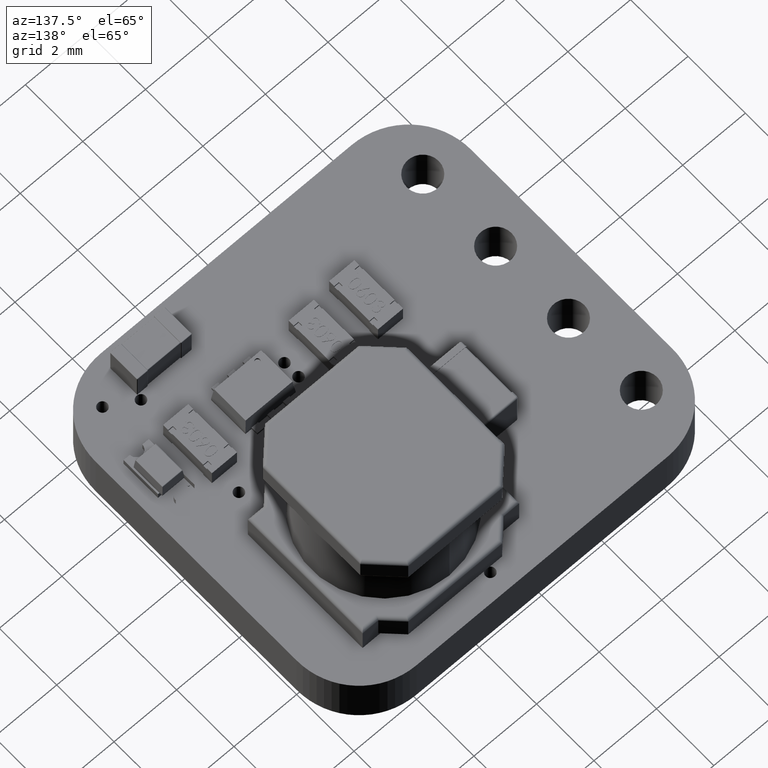
[diagram: clean part render]
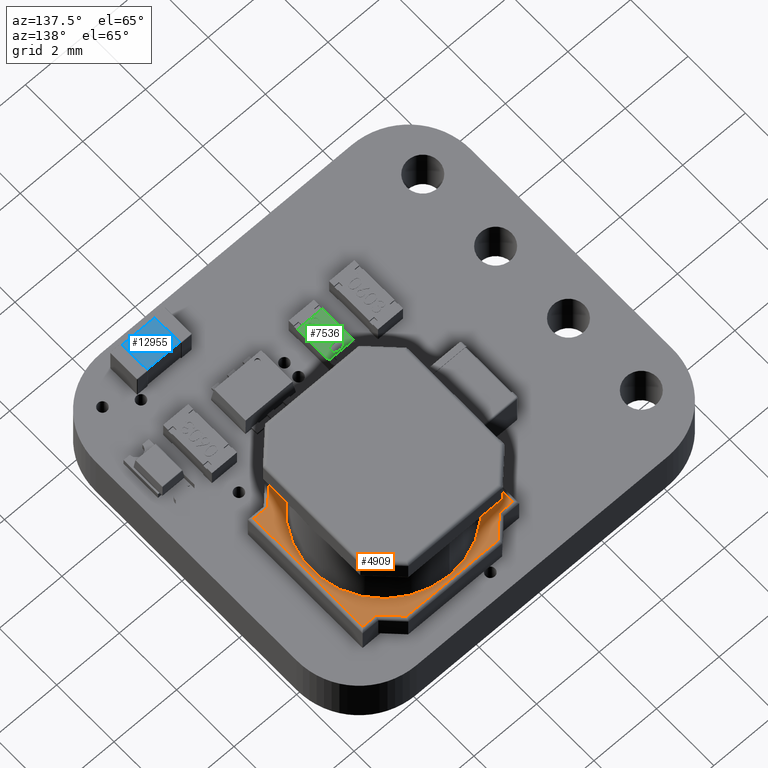
[diagram: same view with three faces highlighted in distinct colors, each labeled with its STEP entity id]
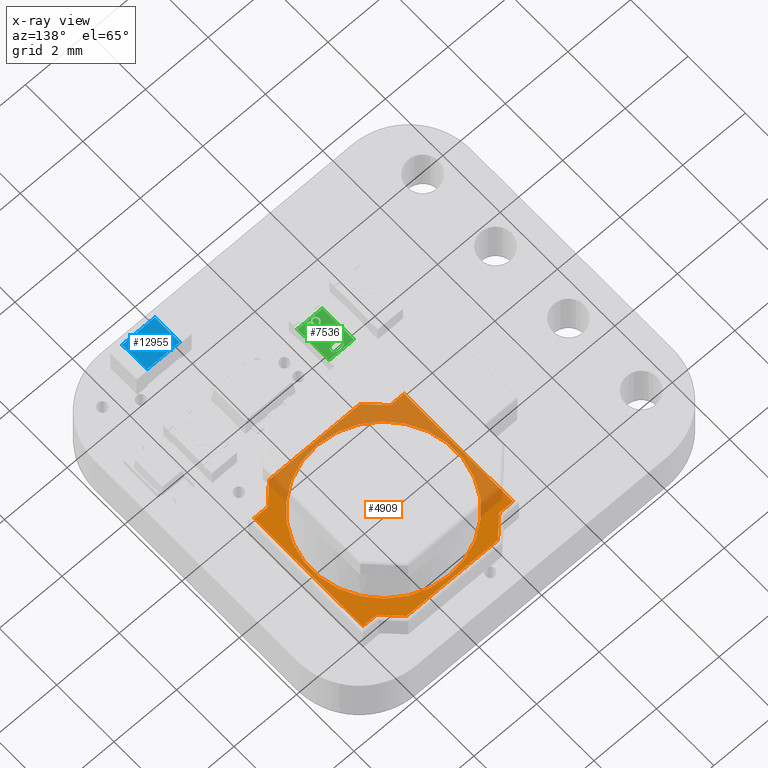
[diagram: x-ray of the same camera — body ghosted, the three highlighted faces saturated]
A machine part, auxiliary view with three faces highlighted in distinct colors.
The next image is the same camera in x-ray (body ghosted, the three faces saturated) — at least one of them is partly hidden behind the body in this view.
Their STEP definitions:

[orange] entity #4909 — the highlighted planar face has unit normal (-0, 0, 1).
#4333 = VERTEX_POINT('',#4334);
#4334 = CARTESIAN_POINT('',(2.816687638039E-16,0.900000000001,2.3));
#4340 = EDGE_CURVE('',#4333,#4341,#4343,.T.);
#4341 = VERTEX_POINT('',#4342);
#4342 = CARTESIAN_POINT('',(0.,0.900000000001,-2.3));
#4343 = CIRCLE('',#4344,2.3);
#4344 = AXIS2_PLACEMENT_3D('',#4345,#4346,#4347);
#4345 = CARTESIAN_POINT('',(0.,0.900000000001,0.));
#4346 = DIRECTION('',(0.,1.,-0.));
#4347 = DIRECTION('',(0.,0.,1.));
#4898 = EDGE_CURVE('',#4341,#4333,#4899,.T.);
#4899 = CIRCLE('',#4900,2.3);
#4900 = AXIS2_PLACEMENT_3D('',#4901,#4902,#4903);
#4901 = CARTESIAN_POINT('',(0.,0.900000000001,0.));
#4902 = DIRECTION('',(0.,1.,-0.));
#4903 = DIRECTION('',(0.,0.,1.));
#4909 = ADVANCED_FACE('',(#4910,#5008),#5012,.T.);
#4910 = FACE_BOUND('',#4911,.T.);
#4911 = EDGE_LOOP('',(#4912,#4922,#4930,#4938,#4946,#4954,#4962,#4970,
    #4978,#4986,#4994,#5002));
#4912 = ORIENTED_EDGE('',*,*,#4913,.T.);
#4913 = EDGE_CURVE('',#4914,#4916,#4918,.T.);
#4914 = VERTEX_POINT('',#4915);
#4915 = CARTESIAN_POINT('',(2.4,0.9,1.9));
#4916 = VERTEX_POINT('',#4917);
#4917 = CARTESIAN_POINT('',(2.4,0.9,-1.9));
#4918 = LINE('',#4919,#4920);
#4919 = CARTESIAN_POINT('',(2.4,0.9,-2.));
#4920 = VECTOR('',#4921,1.);
#4921 = DIRECTION('',(0.,0.,-1.));
#4922 = ORIENTED_EDGE('',*,*,#4923,.T.);
#4923 = EDGE_CURVE('',#4916,#4924,#4926,.T.);
#4924 = VERTEX_POINT('',#4925);
#4925 = CARTESIAN_POINT('',(1.958578643763,0.9,-1.9));
#4926 = LINE('',#4927,#4928);
#4927 = CARTESIAN_POINT('',(2.,0.9,-1.9));
#4928 = VECTOR('',#4929,1.);
#4929 = DIRECTION('',(-1.,0.,0.));
#4930 = ORIENTED_EDGE('',*,*,#4931,.T.);
#4931 = EDGE_CURVE('',#4924,#4932,#4934,.T.);
#4932 = VERTEX_POINT('',#4933);
#4933 = CARTESIAN_POINT('',(1.458578643763,0.9,-2.4));
#4934 = LINE('',#4935,#4936);
#4935 = CARTESIAN_POINT('',(1.429289321881,0.9,-2.429289321881));
#4936 = VECTOR('',#4937,1.);
#4937 = DIRECTION('',(-0.707106781187,0.,-0.707106781187));
#4938 = ORIENTED_EDGE('',*,*,#4939,.T.);
#4939 = EDGE_CURVE('',#4932,#4940,#4942,.T.);
#4940 = VERTEX_POINT('',#4941);
#4941 = CARTESIAN_POINT('',(-1.458578643763,0.9,-2.4));
#4942 = LINE('',#4943,#4944);
#4943 = CARTESIAN_POINT('',(-1.5,0.9,-2.4));
#4944 = VECTOR('',#4945,1.);
#4945 = DIRECTION('',(-1.,0.,0.));
#4946 = ORIENTED_EDGE('',*,*,#4947,.T.);
#4947 = EDGE_CURVE('',#4940,#4948,#4950,.T.);
#4948 = VERTEX_POINT('',#4949);
#4949 = CARTESIAN_POINT('',(-1.958578643763,0.9,-1.9));
#4950 = LINE('',#4951,#4952);
#4951 = CARTESIAN_POINT('',(-1.929289321881,0.9,-1.929289321881));
#4952 = VECTOR('',#4953,1.);
#4953 = DIRECTION('',(-0.707106781187,0.,0.707106781187));
#4954 = ORIENTED_EDGE('',*,*,#4955,.T.);
#4955 = EDGE_CURVE('',#4948,#4956,#4958,.T.);
#4956 = VERTEX_POINT('',#4957);
#4957 = CARTESIAN_POINT('',(-2.4,0.9,-1.9));
#4958 = LINE('',#4959,#4960);
#4959 = CARTESIAN_POINT('',(-2.5,0.9,-1.9));
#4960 = VECTOR('',#4961,1.);
#4961 = DIRECTION('',(-1.,0.,6.938893903907E-15));
#4962 = ORIENTED_EDGE('',*,*,#4963,.T.);
#4963 = EDGE_CURVE('',#4956,#4964,#4966,.T.);
#4964 = VERTEX_POINT('',#4965);
#4965 = CARTESIAN_POINT('',(-2.4,0.9,1.9));
#4966 = LINE('',#4967,#4968);
#4967 = CARTESIAN_POINT('',(-2.4,0.9,2.));
#4968 = VECTOR('',#4969,1.);
#4969 = DIRECTION('',(6.938893903907E-15,0.,1.));
#4970 = ORIENTED_EDGE('',*,*,#4971,.T.);
#4971 = EDGE_CURVE('',#4964,#4972,#4974,.T.);
#4972 = VERTEX_POINT('',#4973);
#4973 = CARTESIAN_POINT('',(-1.958578643763,0.9,1.9));
#4974 = LINE('',#4975,#4976);
#4975 = CARTESIAN_POINT('',(-2.,0.9,1.9));
#4976 = VECTOR('',#4977,1.);
#4977 = DIRECTION('',(1.,-0.,-6.245004513517E-14));
#4978 = ORIENTED_EDGE('',*,*,#4979,.T.);
#4979 = EDGE_CURVE('',#4972,#4980,#4982,.T.);
#4980 = VERTEX_POINT('',#4981);
#4981 = CARTESIAN_POINT('',(-1.458578643763,0.9,2.4));
#4982 = LINE('',#4983,#4984);
#4983 = CARTESIAN_POINT('',(-1.429289321881,0.9,2.429289321881));
#4984 = VECTOR('',#4985,1.);
#4985 = DIRECTION('',(0.707106781187,0.,0.707106781187));
#4986 = ORIENTED_EDGE('',*,*,#4987,.T.);
#4987 = EDGE_CURVE('',#4980,#4988,#4990,.T.);
#4988 = VERTEX_POINT('',#4989);
#4989 = CARTESIAN_POINT('',(1.458578643763,0.9,2.4));
#4990 = LINE('',#4991,#4992);
#4991 = CARTESIAN_POINT('',(1.5,0.9,2.4));
#4992 = VECTOR('',#4993,1.);
#4993 = DIRECTION('',(1.,-0.,0.));
#4994 = ORIENTED_EDGE('',*,*,#4995,.T.);
#4995 = EDGE_CURVE('',#4988,#4996,#4998,.T.);
#4996 = VERTEX_POINT('',#4997);
#4997 = CARTESIAN_POINT('',(1.958578643763,0.9,1.9));
#4998 = LINE('',#4999,#5000);
#4999 = CARTESIAN_POINT('',(1.929289321881,0.9,1.929289321881));
#5000 = VECTOR('',#5001,1.);
#5001 = DIRECTION('',(0.707106781187,-0.,-0.707106781187));
#5002 = ORIENTED_EDGE('',*,*,#5003,.T.);
#5003 = EDGE_CURVE('',#4996,#4914,#5004,.T.);
#5004 = LINE('',#5005,#5006);
#5005 = CARTESIAN_POINT('',(2.5,0.9,1.9));
#5006 = VECTOR('',#5007,1.);
#5007 = DIRECTION('',(1.,-0.,0.));
#5008 = FACE_BOUND('',#5009,.T.);
#5009 = EDGE_LOOP('',(#5010,#5011));
#5010 = ORIENTED_EDGE('',*,*,#4898,.F.);
#5011 = ORIENTED_EDGE('',*,*,#4340,.F.);
#5012 = PLANE('',#5013);
#5013 = AXIS2_PLACEMENT_3D('',#5014,#5015,#5016);
#5014 = CARTESIAN_POINT('',(-2.5,0.9,-2.));
#5015 = DIRECTION('',(0.,1.,-0.));
#5016 = DIRECTION('',(0.,0.,1.));

[blue] entity #12955 — the highlighted planar face has unit normal (0, 0, 1).
#12092 = VERTEX_POINT('',#12093);
#12093 = CARTESIAN_POINT('',(0.35,1.976E-02,-0.91048));
#12099 = EDGE_CURVE('',#12092,#12100,#12102,.T.);
#12100 = VERTEX_POINT('',#12101);
#12101 = CARTESIAN_POINT('',(0.35,1.976E-02,-3.952E-02));
#12102 = LINE('',#12103,#12104);
#12103 = CARTESIAN_POINT('',(0.35,1.976E-02,-0.95));
#12104 = VECTOR('',#12105,1.);
#12105 = DIRECTION('',(-0.,-0.,1.));
#12406 = VERTEX_POINT('',#12407);
#12407 = CARTESIAN_POINT('',(1.4,1.976E-02,-3.952E-02));
#12413 = EDGE_CURVE('',#12414,#12406,#12416,.T.);
#12414 = VERTEX_POINT('',#12415);
#12415 = CARTESIAN_POINT('',(1.4,1.976E-02,-0.91048));
#12416 = LINE('',#12417,#12418);
#12417 = CARTESIAN_POINT('',(1.4,1.976E-02,-0.95));
#12418 = VECTOR('',#12419,1.);
#12419 = DIRECTION('',(-0.,-0.,1.));
#12955 = ADVANCED_FACE('',(#12956),#12972,.T.);
#12956 = FACE_BOUND('',#12957,.T.);
#12957 = EDGE_LOOP('',(#12958,#12959,#12965,#12966));
#12958 = ORIENTED_EDGE('',*,*,#12099,.F.);
#12959 = ORIENTED_EDGE('',*,*,#12960,.T.);
#12960 = EDGE_CURVE('',#12092,#12414,#12961,.T.);
#12961 = LINE('',#12962,#12963);
#12962 = CARTESIAN_POINT('',(1.4,1.976E-02,-0.91048));
#12963 = VECTOR('',#12964,1.);
#12964 = DIRECTION('',(1.,0.,-0.));
#12965 = ORIENTED_EDGE('',*,*,#12413,.T.);
#12966 = ORIENTED_EDGE('',*,*,#12967,.T.);
#12967 = EDGE_CURVE('',#12406,#12100,#12968,.T.);
#12968 = LINE('',#12969,#12970);
#12969 = CARTESIAN_POINT('',(0.35,1.976E-02,-3.952E-02));
#12970 = VECTOR('',#12971,1.);
#12971 = DIRECTION('',(-1.,-0.,-0.));
#12972 = PLANE('',#12973);
#12973 = AXIS2_PLACEMENT_3D('',#12974,#12975,#12976);
#12974 = CARTESIAN_POINT('',(0.35,1.976E-02,-0.95));
#12975 = DIRECTION('',(0.,-1.,0.));
#12976 = DIRECTION('',(0.,-0.,-1.));

[green] entity #7536 — the highlighted planar face has unit normal (0, 0, -1).
#7536 = ADVANCED_FACE('',(#7537,#7839,#7969,#8099,#8133),#8253,.F.);
#7537 = FACE_BOUND('',#7538,.T.);
#7538 = EDGE_LOOP('',(#7539,#7565,#7585,#7593,#7617,#7637,#7653,#7665,
    #7681,#7701,#7725,#7733,#7749,#7765,#7789,#7813,#7821));
#7539 = ORIENTED_EDGE('',*,*,#7540,.T.);
#7540 = EDGE_CURVE('',#7541,#7543,#7545,.T.);
#7541 = VERTEX_POINT('',#7542);
#7542 = CARTESIAN_POINT('',(0.478273426848,0.55,-0.106928921418));
#7543 = VERTEX_POINT('',#7544);
#7544 = CARTESIAN_POINT('',(0.407880798643,0.55,-0.161826757956));
#7545 = B_SPLINE_CURVE_WITH_KNOTS('',3,(#7546,#7547,#7548,#7549,#7550,
    #7551,#7552,#7553,#7554,#7555,#7556,#7557,#7558,#7559,#7560,#7561,
    #7562,#7563,#7564),.UNSPECIFIED.,.F.,.F.,(4,1,1,1,1,1,1,1,1,1,1,1,1,
    1,1,1,4),(0.,5.527454908753E-02,0.109966093882,0.163247442852,
    0.218076185482,0.273300874374,0.330909300011,0.390994523365,
    0.454175953431,0.518861540849,0.583310532011,0.648516681864,
    0.715030887097,0.782502072854,0.852322685077,0.924928489784,1.),
  .UNSPECIFIED.);
#7546 = CARTESIAN_POINT('',(0.478273426848,0.55,-0.106928921418));
#7547 = CARTESIAN_POINT('',(0.478231985752,0.55,-0.108756695932));
#7548 = CARTESIAN_POINT('',(0.478149540656,0.55,-0.112392966641));
#7549 = CARTESIAN_POINT('',(0.477109812878,0.55,-0.11770547351));
#7550 = CARTESIAN_POINT('',(0.47554740878,0.55,-0.122855568103));
#7551 = CARTESIAN_POINT('',(0.473399435849,0.55,-0.127821349128));
#7552 = CARTESIAN_POINT('',(0.470524415978,0.55,-0.132568376518));
#7553 = CARTESIAN_POINT('',(0.467083817326,0.55,-0.137137121412));
#7554 = CARTESIAN_POINT('',(0.462987007298,0.55,-0.141501499313));
#7555 = CARTESIAN_POINT('',(0.458292462597,0.55,-0.145569531268));
#7556 = CARTESIAN_POINT('',(0.4532512821,0.55,-0.149446454985));
#7557 = CARTESIAN_POINT('',(0.447726304595,0.55,-0.152737818683));
#7558 = CARTESIAN_POINT('',(0.441884117124,0.55,-0.15555232489));
#7559 = CARTESIAN_POINT('',(0.435718251639,0.55,-0.157873275101));
#7560 = CARTESIAN_POINT('',(0.429208698607,0.55,-0.159619203922));
#7561 = CARTESIAN_POINT('',(0.422386042842,0.55,-0.160872788062));
#7562 = CARTESIAN_POINT('',(0.41523727449,0.55,-0.161656553536));
#7563 = CARTESIAN_POINT('',(0.41036010129,0.55,-0.161769395126));
#7564 = CARTESIAN_POINT('',(0.407880798643,0.55,-0.161826757956));
#7565 = ORIENTED_EDGE('',*,*,#7566,.T.);
#7566 = EDGE_CURVE('',#7543,#7567,#7569,.T.);
#7567 = VERTEX_POINT('',#7568);
#7568 = CARTESIAN_POINT('',(0.334683683258,0.55,-0.10798060411));
#7569 = B_SPLINE_CURVE_WITH_KNOTS('',3,(#7570,#7571,#7572,#7573,#7574,
    #7575,#7576,#7577,#7578,#7579,#7580,#7581,#7582,#7583,#7584),
  .UNSPECIFIED.,.F.,.F.,(4,1,1,1,1,1,1,1,1,1,1,1,4),(0.,0.122711942366,
    0.239684964017,0.351815855256,0.463766132862,0.520817793161,
    0.579448291448,0.64060414512,0.705297511806,0.773633880713,
    0.844669381886,0.920056508021,1.),.UNSPECIFIED.);
#7570 = CARTESIAN_POINT('',(0.407880798643,0.55,-0.161826757956));
#7571 = CARTESIAN_POINT('',(0.403895631842,0.55,-0.161687621756));
#7572 = CARTESIAN_POINT('',(0.396111674204,0.55,-0.161415856396));
#7573 = CARTESIAN_POINT('',(0.384890182513,0.55,-0.159035555051));
#7574 = CARTESIAN_POINT('',(0.374458249113,0.55,-0.155237746702));
#7575 = CARTESIAN_POINT('',(0.366484382454,0.55,-0.150704444758));
#7576 = CARTESIAN_POINT('',(0.360596125038,0.55,-0.146229401373));
#7577 = CARTESIAN_POINT('',(0.356388431218,0.55,-0.142321162736));
#7578 = CARTESIAN_POINT('',(0.352256380178,0.55,-0.13797788037));
#7579 = CARTESIAN_POINT('',(0.348471812493,0.55,-0.132932042842));
#7580 = CARTESIAN_POINT('',(0.344644414825,0.55,-0.127525363823));
#7581 = CARTESIAN_POINT('',(0.341159958672,0.55,-0.121482995669));
#7582 = CARTESIAN_POINT('',(0.337773989447,0.55,-0.114962556239));
#7583 = CARTESIAN_POINT('',(0.335733734485,0.55,-0.110352992784));
#7584 = CARTESIAN_POINT('',(0.334683683258,0.55,-0.10798060411));
#7585 = ORIENTED_EDGE('',*,*,#7586,.T.);
#7586 = EDGE_CURVE('',#7567,#7587,#7589,.T.);
#7587 = VERTEX_POINT('',#7588);
#7588 = CARTESIAN_POINT('',(0.303273426848,0.55,-0.10798060411));
#7589 = LINE('',#7590,#7591);
#7590 = CARTESIAN_POINT('',(0.334683683258,0.55,-0.10798060411));
#7591 = VECTOR('',#7592,1.);
#7592 = DIRECTION('',(-1.,0.,0.));
#7593 = ORIENTED_EDGE('',*,*,#7594,.T.);
#7594 = EDGE_CURVE('',#7587,#7595,#7597,.T.);
#7595 = VERTEX_POINT('',#7596);
#7596 = CARTESIAN_POINT('',(0.407460125566,0.55,-0.197724193853));
#7597 = B_SPLINE_CURVE_WITH_KNOTS('',3,(#7598,#7599,#7600,#7601,#7602,
    #7603,#7604,#7605,#7606,#7607,#7608,#7609,#7610,#7611,#7612,#7613,
    #7614,#7615,#7616),.UNSPECIFIED.,.F.,.F.,(4,1,1,1,1,1,1,1,1,1,1,1,1,
    1,1,1,4),(0.,7.262534608344E-02,0.141976611326,0.208984928419,
    0.273956870364,0.336889347397,0.398744953495,0.460115885279,
    0.52082492259,0.580994458632,0.640151927601,0.698622450756,
    0.757271080927,0.816426694005,0.876254048203,0.937165293063,1.),
  .UNSPECIFIED.);
#7598 = CARTESIAN_POINT('',(0.303273426848,0.55,-0.10798060411));
#7599 = CARTESIAN_POINT('',(0.304124381916,0.55,-0.111503852507));
#7600 = CARTESIAN_POINT('',(0.305787929472,0.55,-0.118391514946));
#7601 = CARTESIAN_POINT('',(0.309257686819,0.55,-0.128232241031));
#7602 = CARTESIAN_POINT('',(0.313037612338,0.55,-0.13754459317));
#7603 = CARTESIAN_POINT('',(0.317576522795,0.55,-0.14615420054));
#7604 = CARTESIAN_POINT('',(0.322527398217,0.55,-0.154234090813));
#7605 = CARTESIAN_POINT('',(0.328199670371,0.55,-0.16160100326));
#7606 = CARTESIAN_POINT('',(0.334331642627,0.55,-0.168442299807));
#7607 = CARTESIAN_POINT('',(0.341114137557,0.55,-0.174513623562));
#7608 = CARTESIAN_POINT('',(0.348227003722,0.55,-0.180011396483));
#7609 = CARTESIAN_POINT('',(0.355770465697,0.55,-0.184698902217));
#7610 = CARTESIAN_POINT('',(0.363592755064,0.55,-0.188731317504));
#7611 = CARTESIAN_POINT('',(0.371748068359,0.55,-0.192053340691));
#7612 = CARTESIAN_POINT('',(0.380260685528,0.55,-0.194555893058));
#7613 = CARTESIAN_POINT('',(0.38905364786,0.55,-0.196371573617));
#7614 = CARTESIAN_POINT('',(0.398149997871,0.55,-0.197550685038));
#7615 = CARTESIAN_POINT('',(0.404324756931,0.55,-0.197665761347));
#7616 = CARTESIAN_POINT('',(0.407460125566,0.55,-0.197724193853));
#7617 = ORIENTED_EDGE('',*,*,#7618,.T.);
#7618 = EDGE_CURVE('',#7595,#7619,#7621,.T.);
#7619 = VERTEX_POINT('',#7620);
#7620 = CARTESIAN_POINT('',(0.509683683258,0.55,-0.106788697059));
#7621 = B_SPLINE_CURVE_WITH_KNOTS('',3,(#7622,#7623,#7624,#7625,#7626,
    #7627,#7628,#7629,#7630,#7631,#7632,#7633,#7634,#7635,#7636),
  .UNSPECIFIED.,.F.,.F.,(4,1,1,1,1,1,1,1,1,1,1,1,4),(0.,
    9.025424934268E-02,0.178539791529,0.266093033854,0.354630977957,
    0.441886153351,0.525746915164,0.608113633604,0.690197272828,
    0.77082148433,0.848326181255,0.924011740025,1.),.UNSPECIFIED.);
#7622 = CARTESIAN_POINT('',(0.407460125566,0.55,-0.197724193853));
#7623 = CARTESIAN_POINT('',(0.412028399773,0.55,-0.197586270829));
#7624 = CARTESIAN_POINT('',(0.421065300868,0.55,-0.197313433281));
#7625 = CARTESIAN_POINT('',(0.434341605563,0.55,-0.194821989634));
#7626 = CARTESIAN_POINT('',(0.447144287473,0.55,-0.190879476398));
#7627 = CARTESIAN_POINT('',(0.459333212255,0.55,-0.185432103684));
#7628 = CARTESIAN_POINT('',(0.470655055514,0.55,-0.178713372368));
#7629 = CARTESIAN_POINT('',(0.480728674189,0.55,-0.170716898679));
#7630 = CARTESIAN_POINT('',(0.489417525269,0.55,-0.16159696853));
#7631 = CARTESIAN_POINT('',(0.496706963035,0.55,-0.151523712098));
#7632 = CARTESIAN_POINT('',(0.502414462941,0.55,-0.140758161159));
#7633 = CARTESIAN_POINT('',(0.506623100289,0.55,-0.129678145445));
#7634 = CARTESIAN_POINT('',(0.509185268389,0.55,-0.118309948306));
#7635 = CARTESIAN_POINT('',(0.50951732407,0.55,-0.110634220388));
#7636 = CARTESIAN_POINT('',(0.509683683258,0.55,-0.106788697059));
#7637 = ORIENTED_EDGE('',*,*,#7638,.T.);
#7638 = EDGE_CURVE('',#7619,#7639,#7641,.T.);
#7639 = VERTEX_POINT('',#7640);
#7640 = CARTESIAN_POINT('',(0.468808282617,0.55,-3.478348872524E-02));
#7641 = B_SPLINE_CURVE_WITH_KNOTS('',3,(#7642,#7643,#7644,#7645,#7646,
    #7647,#7648,#7649,#7650,#7651,#7652),.UNSPECIFIED.,.F.,.F.,(4,1,1,1,
    1,1,1,1,4),(0.,0.128067548596,0.250608318868,0.370630165915,
    0.49007224673,0.610374764155,0.734313069912,0.863216504245,1.),
  .UNSPECIFIED.);
#7642 = CARTESIAN_POINT('',(0.509683683258,0.55,-0.106788697059));
#7643 = CARTESIAN_POINT('',(0.509567324153,0.55,-0.103088017588));
#7644 = CARTESIAN_POINT('',(0.509339627442,0.55,-9.58463621417E-02));
#7645 = CARTESIAN_POINT('',(0.507406256886,0.55,-8.527421242788E-02));
#7646 = CARTESIAN_POINT('',(0.504152630598,0.55,-7.531005239966E-02));
#7647 = CARTESIAN_POINT('',(0.499645654341,0.55,-6.591193618731E-02));
#7648 = CARTESIAN_POINT('',(0.493811499317,0.55,-5.7139452205E-02));
#7649 = CARTESIAN_POINT('',(0.486744229628,0.55,-4.897286311895E-02));
#7650 = CARTESIAN_POINT('',(0.47839396345,0.55,-4.137594730613E-02));
#7651 = CARTESIAN_POINT('',(0.472066069648,0.55,-3.702400000858E-02));
#7652 = CARTESIAN_POINT('',(0.468808282617,0.55,-3.478348872524E-02));
#7653 = ORIENTED_EDGE('',*,*,#7654,.T.);
#7654 = EDGE_CURVE('',#7639,#7655,#7657,.T.);
#7655 = VERTEX_POINT('',#7656);
#7656 = CARTESIAN_POINT('',(0.50673897172,0.55,-4.915700263697E-03));
#7657 = B_SPLINE_CURVE_WITH_KNOTS('',3,(#7658,#7659,#7660,#7661,#7662,
    #7663,#7664),.UNSPECIFIED.,.F.,.F.,(4,1,1,1,4),(0.,0.253879600327,
    0.503008917278,0.75029108069,1.),.UNSPECIFIED.);
#7658 = CARTESIAN_POINT('',(0.468808282617,0.55,-3.478348872524E-02));
#7659 = CARTESIAN_POINT('',(0.472531458074,0.55,-3.298567157109E-02));
#7660 = CARTESIAN_POINT('',(0.479908145501,0.55,-2.942367581007E-02));
#7661 = CARTESIAN_POINT('',(0.489963198454,0.55,-2.243810005834E-02));
#7662 = CARTESIAN_POINT('',(0.49909098599,0.55,-1.437246532295E-02));
#7663 = CARTESIAN_POINT('',(0.504181357891,0.55,-8.078200031596E-03));
#7664 = CARTESIAN_POINT('',(0.50673897172,0.55,-4.915700263697E-03));
#7665 = ORIENTED_EDGE('',*,*,#7666,.T.);
#7666 = EDGE_CURVE('',#7655,#7667,#7669,.T.);
#7667 = VERTEX_POINT('',#7668);
#7668 = CARTESIAN_POINT('',(0.527632401207,0.55,5.727380294143E-02));
#7669 = B_SPLINE_CURVE_WITH_KNOTS('',3,(#7670,#7671,#7672,#7673,#7674,
    #7675,#7676,#7677,#7678,#7679,#7680),.UNSPECIFIED.,.F.,.F.,(4,1,1,1,
    1,1,1,1,4),(0.,0.128135509797,0.254172711902,0.378111645139,
    0.501712263007,0.623986309368,0.747095613618,0.87287463665,1.),
  .UNSPECIFIED.);
#7670 = CARTESIAN_POINT('',(0.50673897172,0.55,-4.915700263697E-03));
#7671 = CARTESIAN_POINT('',(0.508423105955,0.55,-2.609925102831E-03));
#7672 = CARTESIAN_POINT('',(0.511763795561,0.55,1.963866554147E-03));
#7673 = CARTESIAN_POINT('',(0.515887348937,0.55,9.317509142551E-03));
#7674 = CARTESIAN_POINT('',(0.519628260367,0.55,1.675265807076E-02));
#7675 = CARTESIAN_POINT('',(0.5225432823,0.55,2.446859867336E-02));
#7676 = CARTESIAN_POINT('',(0.524800668983,0.55,3.237590004318E-02));
#7677 = CARTESIAN_POINT('',(0.526414272207,0.55,4.048813964901E-02));
#7678 = CARTESIAN_POINT('',(0.527416686296,0.55,4.881194189145E-02));
#7679 = CARTESIAN_POINT('',(0.527560241497,0.55,5.444318991349E-02));
#7680 = CARTESIAN_POINT('',(0.527632401207,0.55,5.727380294143E-02));
#7681 = ORIENTED_EDGE('',*,*,#7682,.T.);
#7682 = EDGE_CURVE('',#7667,#7683,#7685,.T.);
#7683 = VERTEX_POINT('',#7684);
#7684 = CARTESIAN_POINT('',(0.406548667233,0.55,0.170224524095));
#7685 = B_SPLINE_CURVE_WITH_KNOTS('',3,(#7686,#7687,#7688,#7689,#7690,
    #7691,#7692,#7693,#7694,#7695,#7696,#7697,#7698,#7699,#7700),
  .UNSPECIFIED.,.F.,.F.,(4,1,1,1,1,1,1,1,1,1,1,1,4),(0.,
    7.964825118023E-02,0.158921676418,0.239619494737,0.322609429819,
    0.406034636618,0.487602095492,0.569684626596,0.653036145009,
    0.737435717722,0.822477815856,0.909747655118,1.),.UNSPECIFIED.);
#7686 = CARTESIAN_POINT('',(0.527632401207,0.55,5.727380294143E-02));
#7687 = CARTESIAN_POINT('',(0.527452949855,0.55,6.217477506016E-02));
#7688 = CARTESIAN_POINT('',(0.527094891652,0.55,7.195365524453E-02));
#7689 = CARTESIAN_POINT('',(0.523894484221,0.55,8.640112740787E-02));
#7690 = CARTESIAN_POINT('',(0.518933160152,0.55,0.100523677635));
#7691 = CARTESIAN_POINT('',(0.511887466555,0.55,0.11403116156));
#7692 = CARTESIAN_POINT('',(0.503300715672,0.55,0.12666919966));
#7693 = CARTESIAN_POINT('',(0.493084983255,0.55,0.137976830564));
#7694 = CARTESIAN_POINT('',(0.481356342414,0.55,0.147696690997));
#7695 = CARTESIAN_POINT('',(0.468275777529,0.55,0.155817713803));
#7696 = CARTESIAN_POINT('',(0.45410406468,0.55,0.162309506022));
#7697 = CARTESIAN_POINT('',(0.43894650548,0.55,0.166815250307));
#7698 = CARTESIAN_POINT('',(0.423021500084,0.55,0.169749850274));
#7699 = CARTESIAN_POINT('',(0.412100770329,0.55,0.170064537163));
#7700 = CARTESIAN_POINT('',(0.406548667233,0.55,0.170224524095));
#7701 = ORIENTED_EDGE('',*,*,#7702,.T.);
#7702 = EDGE_CURVE('',#7683,#7703,#7705,.T.);
#7703 = VERTEX_POINT('',#7704);
#7704 = CARTESIAN_POINT('',(0.289811888386,0.55,6.701939589015E-02));
#7705 = B_SPLINE_CURVE_WITH_KNOTS('',3,(#7706,#7707,#7708,#7709,#7710,
    #7711,#7712,#7713,#7714,#7715,#7716,#7717,#7718,#7719,#7720,#7721,
    #7722,#7723,#7724),.UNSPECIFIED.,.F.,.F.,(4,1,1,1,1,1,1,1,1,1,1,1,1,
    1,1,1,4),(0.,6.55411703374E-02,0.128963167783,0.190377136189,
    0.250092361669,0.308548432459,0.366397963055,0.424542189267,
    0.483169996423,0.542243399831,0.601739352017,0.66250600225,
    0.724855513449,0.789127829281,0.856346399879,0.926295234987,1.),
  .UNSPECIFIED.);
#7706 = CARTESIAN_POINT('',(0.406548667233,0.55,0.170224524095));
#7707 = CARTESIAN_POINT('',(0.402806737204,0.55,0.170137702769));
#7708 = CARTESIAN_POINT('',(0.395443866697,0.55,0.169966867352));
#7709 = CARTESIAN_POINT('',(0.384619516859,0.55,0.168799007232));
#7710 = CARTESIAN_POINT('',(0.374287346922,0.55,0.166666006708));
#7711 = CARTESIAN_POINT('',(0.364433387136,0.55,0.163795676172));
#7712 = CARTESIAN_POINT('',(0.355048883497,0.55,0.160156501964));
#7713 = CARTESIAN_POINT('',(0.346162472979,0.55,0.155624632161));
#7714 = CARTESIAN_POINT('',(0.337719483627,0.55,0.150293481956));
#7715 = CARTESIAN_POINT('',(0.329799588513,0.55,0.144100123176));
#7716 = CARTESIAN_POINT('',(0.322403731742,0.55,0.1371719892));
#7717 = CARTESIAN_POINT('',(0.315728459319,0.55,0.129386088203));
#7718 = CARTESIAN_POINT('',(0.309662480025,0.55,0.120886347811));
#7719 = CARTESIAN_POINT('',(0.304368216154,0.55,0.111574042191));
#7720 = CARTESIAN_POINT('',(0.299604520892,0.55,0.101569516463));
#7721 = CARTESIAN_POINT('',(0.295686425228,0.55,9.074466662527E-02));
#7722 = CARTESIAN_POINT('',(0.292237868364,0.55,7.919626442637E-02));
#7723 = CARTESIAN_POINT('',(0.290634521939,0.55,7.114849040879E-02));
#7724 = CARTESIAN_POINT('',(0.289811888386,0.55,6.701939589015E-02));
#7725 = ORIENTED_EDGE('',*,*,#7726,.T.);
#7726 = EDGE_CURVE('',#7703,#7727,#7729,.T.);
#7727 = VERTEX_POINT('',#7728);
#7728 = CARTESIAN_POINT('',(0.321222144797,0.55,6.701939589015E-02));
#7729 = LINE('',#7730,#7731);
#7730 = CARTESIAN_POINT('',(0.289811888386,0.55,6.701939589015E-02));
#7731 = VECTOR('',#7732,1.);
#7732 = DIRECTION('',(1.,0.,0.));
#7733 = ORIENTED_EDGE('',*,*,#7734,.T.);
#7734 = EDGE_CURVE('',#7727,#7735,#7737,.T.);
#7735 = VERTEX_POINT('',#7736);
#7736 = CARTESIAN_POINT('',(0.348636006976,0.55,0.115396799736));
#7737 = B_SPLINE_CURVE_WITH_KNOTS('',3,(#7738,#7739,#7740,#7741,#7742,
    #7743,#7744,#7745,#7746,#7747,#7748),.UNSPECIFIED.,.F.,.F.,(4,1,1,1,
    1,1,1,1,4),(0.,0.149770386032,0.291316409995,0.425966373105,
    0.55215957397,0.671527413524,0.786121628692,0.89532507307,1.),
  .UNSPECIFIED.);
#7738 = CARTESIAN_POINT('',(0.321222144797,0.55,6.701939589015E-02));
#7739 = CARTESIAN_POINT('',(0.322040473941,0.55,6.971429721701E-02));
#7740 = CARTESIAN_POINT('',(0.323632195206,0.55,7.495611437882E-02));
#7741 = CARTESIAN_POINT('',(0.32634162501,0.55,8.250014494631E-02));
#7742 = CARTESIAN_POINT('',(0.329428452217,0.55,8.941595026879E-02));
#7743 = CARTESIAN_POINT('',(0.332739908081,0.55,9.575426246659E-02));
#7744 = CARTESIAN_POINT('',(0.336217752683,0.55,0.101577502713));
#7745 = CARTESIAN_POINT('',(0.340109245197,0.55,0.106731689616));
#7746 = CARTESIAN_POINT('',(0.344126159711,0.55,0.111443209837));
#7747 = CARTESIAN_POINT('',(0.347154095046,0.55,0.114097671031));
#7748 = CARTESIAN_POINT('',(0.348636006976,0.55,0.115396799736));
#7749 = ORIENTED_EDGE('',*,*,#7750,.T.);
#7750 = EDGE_CURVE('',#7735,#7751,#7753,.T.);
#7751 = VERTEX_POINT('',#7752);
#7752 = CARTESIAN_POINT('',(0.407109564668,0.55,0.134327088198));
#7753 = B_SPLINE_CURVE_WITH_KNOTS('',3,(#7754,#7755,#7756,#7757,#7758,
    #7759,#7760,#7761,#7762,#7763,#7764),.UNSPECIFIED.,.F.,.F.,(4,1,1,1,
    1,1,1,1,4),(0.,0.118271304836,0.236177533084,0.355662932949,
    0.475904164671,0.600127341711,0.728608116155,0.861313475674,1.),
  .UNSPECIFIED.);
#7754 = CARTESIAN_POINT('',(0.348636006976,0.55,0.115396799736));
#7755 = CARTESIAN_POINT('',(0.350595664629,0.55,0.116907633125));
#7756 = CARTESIAN_POINT('',(0.354508930917,0.55,0.119924636303));
#7757 = CARTESIAN_POINT('',(0.360885754027,0.55,0.123774799157));
#7758 = CARTESIAN_POINT('',(0.367592242635,0.55,0.127110901691));
#7759 = CARTESIAN_POINT('',(0.374773710057,0.55,0.129659271262));
#7760 = CARTESIAN_POINT('',(0.382275187103,0.55,0.131817037341));
#7761 = CARTESIAN_POINT('',(0.390217923626,0.55,0.133229089254));
#7762 = CARTESIAN_POINT('',(0.398531845337,0.55,0.134197906389));
#7763 = CARTESIAN_POINT('',(0.404208621685,0.55,0.134283399538));
#7764 = CARTESIAN_POINT('',(0.407109564668,0.55,0.134327088198));
#7765 = ORIENTED_EDGE('',*,*,#7766,.T.);
#7766 = EDGE_CURVE('',#7751,#7767,#7769,.T.);
#7767 = VERTEX_POINT('',#7768);
#7768 = CARTESIAN_POINT('',(0.496222144797,0.55,6.028862665938E-02));
#7769 = B_SPLINE_CURVE_WITH_KNOTS('',3,(#7770,#7771,#7772,#7773,#7774,
    #7775,#7776,#7777,#7778,#7779,#7780,#7781,#7782,#7783,#7784,#7785,
    #7786,#7787,#7788),.UNSPECIFIED.,.F.,.F.,(4,1,1,1,1,1,1,1,1,1,1,1,1,
    1,1,1,4),(0.,7.607173695556E-02,0.148751714575,0.218402793846,
    0.285759581062,0.350598023675,0.414964044598,0.478069338572,
    0.541760676007,0.604349858539,0.664075021071,0.72146362308,
    0.777587128236,0.832644446927,0.887843511068,0.943460342652,1.),
  .UNSPECIFIED.);
#7770 = CARTESIAN_POINT('',(0.407109564668,0.55,0.134327088198));
#7771 = CARTESIAN_POINT('',(0.410384914933,0.55,0.134265497673));
#7772 = CARTESIAN_POINT('',(0.416789579625,0.55,0.134145062719));
#7773 = CARTESIAN_POINT('',(0.426135065558,0.55,0.133037492034));
#7774 = CARTESIAN_POINT('',(0.435025810315,0.55,0.13142445069));
#7775 = CARTESIAN_POINT('',(0.443363102892,0.55,0.128933152408));
#7776 = CARTESIAN_POINT('',(0.451256153627,0.55,0.125855067262));
#7777 = CARTESIAN_POINT('',(0.458594318589,0.55,0.121990226719));
#7778 = CARTESIAN_POINT('',(0.465473929208,0.55,0.117455754555));
#7779 = CARTESIAN_POINT('',(0.471806869751,0.55,0.112301838691));
#7780 = CARTESIAN_POINT('',(0.477501420502,0.55,0.106659689183));
#7781 = CARTESIAN_POINT('',(0.482515371826,0.55,0.100758382072));
#7782 = CARTESIAN_POINT('',(0.486777837974,0.55,9.462279912081E-02));
#7783 = CARTESIAN_POINT('',(0.490216195793,0.55,8.821898702914E-02));
#7784 = CARTESIAN_POINT('',(0.492931250823,0.55,8.157346414113E-02));
#7785 = CARTESIAN_POINT('',(0.49477957088,0.55,7.466758120569E-02));
#7786 = CARTESIAN_POINT('',(0.496064722393,0.55,6.755785458528E-02));
#7787 = CARTESIAN_POINT('',(0.49616938361,0.55,6.272495769112E-02));
#7788 = CARTESIAN_POINT('',(0.496222144797,0.55,6.028862665938E-02));
#7789 = ORIENTED_EDGE('',*,*,#7790,.T.);
#7790 = EDGE_CURVE('',#7767,#7791,#7793,.T.);
#7791 = VERTEX_POINT('',#7792);
#7792 = CARTESIAN_POINT('',(0.388529837104,0.55,-1.374983487908E-02));
#7793 = B_SPLINE_CURVE_WITH_KNOTS('',3,(#7794,#7795,#7796,#7797,#7798,
    #7799,#7800,#7801,#7802,#7803,#7804,#7805,#7806,#7807,#7808,#7809,
    #7810,#7811,#7812),.UNSPECIFIED.,.F.,.F.,(4,1,1,1,1,1,1,1,1,1,1,1,1,
    1,1,1,4),(0.,6.690918560566E-02,0.133485440423,0.20103511657,
    0.271234340019,0.342879984162,0.41383612961,0.485976621974,
    0.560229557256,0.599884180752,0.644054839643,0.691891931584,
    0.744687524474,0.80149177517,0.86285769822,0.929328379395,1.),
  .UNSPECIFIED.);
#7794 = CARTESIAN_POINT('',(0.496222144797,0.55,6.028862665938E-02));
#7795 = CARTESIAN_POINT('',(0.496069114644,0.55,5.702749277238E-02));
#7796 = CARTESIAN_POINT('',(0.495763815796,0.55,5.052145194637E-02));
#7797 = CARTESIAN_POINT('',(0.493432957851,0.55,4.094969451912E-02));
#7798 = CARTESIAN_POINT('',(0.489599071431,0.55,3.172735327521E-02));
#7799 = CARTESIAN_POINT('',(0.4842318203,0.55,2.301177426942E-02));
#7800 = CARTESIAN_POINT('',(0.477698247435,0.55,1.493418411597E-02));
#7801 = CARTESIAN_POINT('',(0.470061756749,0.55,7.727035868167E-03));
#7802 = CARTESIAN_POINT('',(0.461258933912,0.55,1.780026761058E-03));
#7803 = CARTESIAN_POINT('',(0.453156947009,0.55,-2.32883887881E-03));
#7804 = CARTESIAN_POINT('',(0.445980431358,0.55,-5.132546397187E-03));
#7805 = CARTESIAN_POINT('',(0.439838892914,0.55,-7.000042842113E-03));
#7806 = CARTESIAN_POINT('',(0.432963232576,0.55,-8.581408409722E-03));
#7807 = CARTESIAN_POINT('',(0.425436597689,0.55,-1.005263556219E-02));
#7808 = CARTESIAN_POINT('',(0.417202276044,0.55,-1.130477037738E-02));
#7809 = CARTESIAN_POINT('',(0.408269232247,0.55,-1.234895195172E-02));
#7810 = CARTESIAN_POINT('',(0.398635656086,0.55,-1.318445604617E-02));
#7811 = CARTESIAN_POINT('',(0.3919665395,0.55,-1.355756557432E-02));
#7812 = CARTESIAN_POINT('',(0.388529837104,0.55,-1.374983487908E-02));
#7813 = ORIENTED_EDGE('',*,*,#7814,.T.);
#7814 = EDGE_CURVE('',#7791,#7815,#7817,.T.);
#7815 = VERTEX_POINT('',#7816);
#7816 = CARTESIAN_POINT('',(0.388529837104,0.55,-4.964727077652E-02));
#7817 = LINE('',#7818,#7819);
#7818 = CARTESIAN_POINT('',(0.388529837104,0.55,-1.374983487908E-02));
#7819 = VECTOR('',#7820,1.);
#7820 = DIRECTION('',(0.,0.,-1.));
#7821 = ORIENTED_EDGE('',*,*,#7822,.T.);
#7822 = EDGE_CURVE('',#7815,#7541,#7823,.T.);
#7823 = B_SPLINE_CURVE_WITH_KNOTS('',3,(#7824,#7825,#7826,#7827,#7828,
    #7829,#7830,#7831,#7832,#7833,#7834,#7835,#7836,#7837,#7838),
  .UNSPECIFIED.,.F.,.F.,(4,1,1,1,1,1,1,1,1,1,1,1,4),(0.,0.110165553211,
    0.215787256175,0.318027434909,0.417573954166,0.511650487647,
    0.596162097103,0.672934533485,0.74366955735,0.810677001065,
    0.874058962314,0.936696301919,1.),.UNSPECIFIED.);
#7824 = CARTESIAN_POINT('',(0.388529837104,0.55,-4.964727077652E-02));
#7825 = CARTESIAN_POINT('',(0.392859953676,0.55,-4.972075114864E-02));
#7826 = CARTESIAN_POINT('',(0.401341588332,0.55,-4.986468114691E-02));
#7827 = CARTESIAN_POINT('',(0.413731018808,0.55,-5.160548218641E-02));
#7828 = CARTESIAN_POINT('',(0.425578350022,0.55,-5.401354499199E-02));
#7829 = CARTESIAN_POINT('',(0.436621024222,0.55,-5.770206421902E-02));
#7830 = CARTESIAN_POINT('',(0.446685895557,0.55,-6.198609390495E-02));
#7831 = CARTESIAN_POINT('',(0.455417855765,0.55,-6.697131485653E-02));
#7832 = CARTESIAN_POINT('',(0.462694570492,0.55,-7.25127897812E-02));
#7833 = CARTESIAN_POINT('',(0.468480677642,0.55,-7.869605071543E-02));
#7834 = CARTESIAN_POINT('',(0.472833600506,0.55,-8.532755546377E-02));
#7835 = CARTESIAN_POINT('',(0.476016280249,0.55,-9.223922123252E-02));
#7836 = CARTESIAN_POINT('',(0.477896312873,0.55,-9.949162732615E-02));
#7837 = CARTESIAN_POINT('',(0.478147279565,0.55,-0.104441094119));
#7838 = CARTESIAN_POINT('',(0.478273426848,0.55,-0.106928921418));
#7839 = FACE_BOUND('',#7840,.T.);
#7840 = EDGE_LOOP('',(#7841,#7875,#7907,#7939));
#7841 = ORIENTED_EDGE('',*,*,#7842,.T.);
#7842 = EDGE_CURVE('',#7843,#7845,#7847,.T.);
#7843 = VERTEX_POINT('',#7844);
#7844 = CARTESIAN_POINT('',(0.258401631976,0.55,-1.360961052011E-02));
#7845 = VERTEX_POINT('',#7846);
#7846 = CARTESIAN_POINT('',(0.13759834672,0.55,0.170224524095));
#7847 = B_SPLINE_CURVE_WITH_KNOTS('',3,(#7848,#7849,#7850,#7851,#7852,
    #7853,#7854,#7855,#7856,#7857,#7858,#7859,#7860,#7861,#7862,#7863,
    #7864,#7865,#7866,#7867,#7868,#7869,#7870,#7871,#7872,#7873,#7874),
  .UNSPECIFIED.,.F.,.F.,(4,1,1,1,1,1,1,1,1,1,1,1,1,1,1,1,1,1,1,1,1,1,1,1
    ,4),(0.,6.506328961728E-02,0.126773166467,0.185515763226,
    0.240764679168,0.292979796024,0.34225037278,0.388919286186,
    0.432775664058,0.474628432631,0.514774690638,0.553605893498,
    0.591426406431,0.628028119946,0.66380363411,0.698984336132,
    0.733591489307,0.767628469151,0.801208347787,0.834263839727,
    0.866980694729,0.899719741518,0.932701912499,0.966175883433,1.),
  .UNSPECIFIED.);
#7848 = CARTESIAN_POINT('',(0.258401631976,0.55,-1.360961052011E-02));
#7849 = CARTESIAN_POINT('',(0.258336473522,0.55,-8.257219726017E-03));
#7850 = CARTESIAN_POINT('',(0.258209514931,0.55,2.171695459866E-03));
#7851 = CARTESIAN_POINT('',(0.257551644254,0.55,1.742479299185E-02));
#7852 = CARTESIAN_POINT('',(0.256255781136,0.55,3.18245973217E-02));
#7853 = CARTESIAN_POINT('',(0.254634782305,0.55,4.540564356757E-02));
#7854 = CARTESIAN_POINT('',(0.252389686008,0.55,5.811140545087E-02));
#7855 = CARTESIAN_POINT('',(0.249629169383,0.55,6.998585029766E-02));
#7856 = CARTESIAN_POINT('',(0.2465641371,0.55,8.10802574642E-02));
#7857 = CARTESIAN_POINT('',(0.242780657689,0.55,9.13037386252E-02));
#7858 = CARTESIAN_POINT('',(0.238639586655,0.55,0.100798910912));
#7859 = CARTESIAN_POINT('',(0.234134067037,0.55,0.109665625745));
#7860 = CARTESIAN_POINT('',(0.229307084429,0.55,0.117982255013));
#7861 = CARTESIAN_POINT('',(0.224048209928,0.55,0.125682229706));
#7862 = CARTESIAN_POINT('',(0.218442868609,0.55,0.132820095413));
#7863 = CARTESIAN_POINT('',(0.212371089729,0.55,0.139269857678));
#7864 = CARTESIAN_POINT('',(0.206004031219,0.55,0.145186924874));
#7865 = CARTESIAN_POINT('',(0.199262789636,0.55,0.150452087621));
#7866 = CARTESIAN_POINT('',(0.192221634513,0.55,0.155060568084));
#7867 = CARTESIAN_POINT('',(0.18502572682,0.55,0.159181953123));
#7868 = CARTESIAN_POINT('',(0.177547388485,0.55,0.162505222628));
#7869 = CARTESIAN_POINT('',(0.169956093212,0.55,0.165358726726));
#7870 = CARTESIAN_POINT('',(0.162143256601,0.55,0.167538771914));
#7871 = CARTESIAN_POINT('',(0.154118617532,0.55,0.169046157467));
#7872 = CARTESIAN_POINT('',(0.145922993939,0.55,0.170103342312));
#7873 = CARTESIAN_POINT('',(0.140382837431,0.55,0.1701839903));
#7874 = CARTESIAN_POINT('',(0.13759834672,0.55,0.170224524095));
#7875 = ORIENTED_EDGE('',*,*,#7876,.T.);
#7876 = EDGE_CURVE('',#7845,#7877,#7879,.T.);
#7877 = VERTEX_POINT('',#7878);
#7878 = CARTESIAN_POINT('',(2.058111915558E-02,0.55,-1.360961052011E-02)
  );
#7879 = B_SPLINE_CURVE_WITH_KNOTS('',3,(#7880,#7881,#7882,#7883,#7884,
    #7885,#7886,#7887,#7888,#7889,#7890,#7891,#7892,#7893,#7894,#7895,
    #7896,#7897,#7898,#7899,#7900,#7901,#7902,#7903,#7904,#7905,#7906),
  .UNSPECIFIED.,.F.,.F.,(4,1,1,1,1,1,1,1,1,1,1,1,1,1,1,1,1,1,1,1,1,1,1,1
    ,4),(0.,3.378714634699E-02,6.662165772429E-02,9.928487809597E-02,
    0.131361165043,0.163585187595,0.196103926987,0.228902254324,
    0.262158055905,0.295991222258,0.330217845725,0.365059825892,
    0.40095073734,0.437620382077,0.475707529437,0.515380691625,
    0.556413541493,0.599764829873,0.646424155584,0.696431444518,
    0.749781517802,0.806573306976,0.867435531565,0.931886753251,1.),
  .UNSPECIFIED.);
#7880 = CARTESIAN_POINT('',(0.13759834672,0.55,0.170224524095));
#7881 = CARTESIAN_POINT('',(0.134837935321,0.55,0.170177888549));
#7882 = CARTESIAN_POINT('',(0.129394942845,0.55,0.170085932356));
#7883 = CARTESIAN_POINT('',(0.121329700301,0.55,0.169134559207));
#7884 = CARTESIAN_POINT('',(0.113501455957,0.55,0.167605008886));
#7885 = CARTESIAN_POINT('',(0.105871580553,0.55,0.165463348476));
#7886 = CARTESIAN_POINT('',(9.840092904454E-02,0.55,0.162841864845));
#7887 = CARTESIAN_POINT('',(9.119130037896E-02,0.55,0.159426496485));
#7888 = CARTESIAN_POINT('',(8.416253200989E-02,0.55,0.155493089589));
#7889 = CARTESIAN_POINT('',(7.733337640808E-02,0.55,0.151013547445));
#7890 = CARTESIAN_POINT('',(7.08321603041E-02,0.55,0.145881379132));
#7891 = CARTESIAN_POINT('',(6.462229977272E-02,0.55,0.140204950264));
#7892 = CARTESIAN_POINT('',(5.885979786302E-02,0.55,0.133842609134));
#7893 = CARTESIAN_POINT('',(5.349638830129E-02,0.55,0.126894816823));
#7894 = CARTESIAN_POINT('',(4.839897948171E-02,0.55,0.11942549259));
#7895 = CARTESIAN_POINT('',(4.371004214979E-02,0.55,0.111332655285));
#7896 = CARTESIAN_POINT('',(3.937295674298E-02,0.55,0.102648394236));
#7897 = CARTESIAN_POINT('',(3.540860767613E-02,0.55,9.331660316894E-02)
  );
#7898 = CARTESIAN_POINT('',(3.189374132464E-02,0.55,8.320111038296E-02)
  );
#7899 = CARTESIAN_POINT('',(2.87889705133E-02,0.55,7.218619253271E-02));
#7900 = CARTESIAN_POINT('',(2.633755476629E-02,0.55,6.01746289213E-02));
#7901 = CARTESIAN_POINT('',(2.4239259233E-02,0.55,4.726289221077E-02));
#7902 = CARTESIAN_POINT('',(2.254682092865E-02,0.55,3.339549917218E-02)
  );
#7903 = CARTESIAN_POINT('',(2.139138839682E-02,0.55,1.856492135349E-02)
  );
#7904 = CARTESIAN_POINT('',(2.067725689324E-02,0.55,2.780400460877E-03)
  );
#7905 = CARTESIAN_POINT('',(2.061374985123E-02,0.55,-8.046576970783E-03)
  );
#7906 = CARTESIAN_POINT('',(2.058111915558E-02,0.55,-1.360961052011E-02)
  );
#7907 = ORIENTED_EDGE('',*,*,#7908,.T.);
#7908 = EDGE_CURVE('',#7877,#7909,#7911,.T.);
#7909 = VERTEX_POINT('',#7910);
#7910 = CARTESIAN_POINT('',(0.13759834672,0.55,-0.197724193853));
#7911 = B_SPLINE_CURVE_WITH_KNOTS('',3,(#7912,#7913,#7914,#7915,#7916,
    #7917,#7918,#7919,#7920,#7921,#7922,#7923,#7924,#7925,#7926,#7927,
    #7928,#7929,#7930,#7931,#7932,#7933,#7934,#7935,#7936,#7937,#7938),
  .UNSPECIFIED.,.F.,.F.,(4,1,1,1,1,1,1,1,1,1,1,1,1,1,1,1,1,1,1,1,1,1,1,1
    ,4),(0.,6.859462225874E-02,0.133246042443,0.194312586468,
    0.251279223117,0.304513439256,0.354234906653,0.400480588774,
    0.443410754938,0.484014868616,0.523252300773,0.561042372728,
    0.597900239364,0.633518488856,0.66831435117,0.702495671286,
    0.736685353513,0.770293169361,0.803437255019,0.835912951666,
    0.868460245789,0.900846538243,0.933466524631,0.966257575298,1.),
  .UNSPECIFIED.);
#7912 = CARTESIAN_POINT('',(2.058111915558E-02,0.55,-1.360961052011E-02)
  );
#7913 = CARTESIAN_POINT('',(2.061392097133E-02,0.55,-1.921934929353E-02)
  );
#7914 = CARTESIAN_POINT('',(2.067763897121E-02,0.55,-3.011634771828E-02)
  );
#7915 = CARTESIAN_POINT('',(2.138648106544E-02,0.55,-4.599481192496E-02)
  );
#7916 = CARTESIAN_POINT('',(2.256401529675E-02,0.55,-6.089084082448E-02)
  );
#7917 = CARTESIAN_POINT('',(2.417775258178E-02,0.55,-7.480514742832E-02)
  );
#7918 = CARTESIAN_POINT('',(2.614155060414E-02,0.55,-8.774132388009E-02)
  );
#7919 = CARTESIAN_POINT('',(2.876309926427E-02,0.55,-9.966479959372E-02)
  );
#7920 = CARTESIAN_POINT('',(3.174437952577E-02,0.55,-0.110630760255));
#7921 = CARTESIAN_POINT('',(3.519962410682E-02,0.55,-0.120674965103));
#7922 = CARTESIAN_POINT('',(3.909840300865E-02,0.55,-0.129932735405));
#7923 = CARTESIAN_POINT('',(4.334182908086E-02,0.55,-0.138575255534));
#7924 = CARTESIAN_POINT('',(4.809830852322E-02,0.55,-0.146589448768));
#7925 = CARTESIAN_POINT('',(5.309599981593E-02,0.55,-0.15410322781));
#7926 = CARTESIAN_POINT('',(5.853720697871E-02,0.55,-0.160993597289));
#7927 = CARTESIAN_POINT('',(6.426708602543E-02,0.55,-0.167357863541));
#7928 = CARTESIAN_POINT('',(7.050927365215E-02,0.55,-0.173048938588));
#7929 = CARTESIAN_POINT('',(7.705157447949E-02,0.55,-0.178233568826));
#7930 = CARTESIAN_POINT('',(8.395322091866E-02,0.55,-0.182778515993));
#7931 = CARTESIAN_POINT('',(9.101748753298E-02,0.55,-0.186781789855));
#7932 = CARTESIAN_POINT('',(9.829299811858E-02,0.55,-0.190201776581));
#7933 = CARTESIAN_POINT('',(0.105799616408,0.55,-0.192890820167));
#7934 = CARTESIAN_POINT('',(0.113469872197,0.55,-0.195111904844));
#7935 = CARTESIAN_POINT('',(0.121330578866,0.55,-0.196630799609));
#7936 = CARTESIAN_POINT('',(0.12939471526,0.55,-0.197586490458));
#7937 = CARTESIAN_POINT('',(0.13483785874,0.55,-0.197677857232));
#7938 = CARTESIAN_POINT('',(0.13759834672,0.55,-0.197724193853));
#7939 = ORIENTED_EDGE('',*,*,#7940,.T.);
#7940 = EDGE_CURVE('',#7909,#7843,#7941,.T.);
#7941 = B_SPLINE_CURVE_WITH_KNOTS('',3,(#7942,#7943,#7944,#7945,#7946,
    #7947,#7948,#7949,#7950,#7951,#7952,#7953,#7954,#7955,#7956,#7957,
    #7958,#7959,#7960,#7961,#7962,#7963,#7964,#7965,#7966,#7967,#7968),
  .UNSPECIFIED.,.F.,.F.,(4,1,1,1,1,1,1,1,1,1,1,1,1,1,1,1,1,1,1,1,1,1,1,1
    ,4),(0.,3.378811616271E-02,6.719393237388E-02,9.986241085683E-02,
    0.132566612126,0.165151173255,0.197913187356,0.231319003567,
    0.265083278267,0.299255308758,0.334398566505,0.369942823509,
    0.4062835607,0.444063819699,0.482997706873,0.523354446613,
    0.565536589604,0.609612924066,0.656390811376,0.705885494936,
    0.758324500262,0.813831782941,0.872794559039,0.93472222954,1.),
  .UNSPECIFIED.);
#7942 = CARTESIAN_POINT('',(0.13759834672,0.55,-0.197724193853));
#7943 = CARTESIAN_POINT('',(0.140381894568,0.55,-0.197675412336));
#7944 = CARTESIAN_POINT('',(0.145917495458,0.55,-0.197578401245));
#7945 = CARTESIAN_POINT('',(0.154101532982,0.55,-0.196646006992));
#7946 = CARTESIAN_POINT('',(0.162096501154,0.55,-0.195098894682));
#7947 = CARTESIAN_POINT('',(0.169868315024,0.55,-0.192906797224));
#7948 = CARTESIAN_POINT('',(0.177480813671,0.55,-0.190187229558));
#7949 = CARTESIAN_POINT('',(0.184874454435,0.55,-0.186778517847));
#7950 = CARTESIAN_POINT('',(0.1920951626,0.55,-0.182810631113));
#7951 = CARTESIAN_POINT('',(0.199028191352,0.55,-0.178148243382));
#7952 = CARTESIAN_POINT('',(0.205749652886,0.55,-0.172950015762));
#7953 = CARTESIAN_POINT('',(0.212094449183,0.55,-0.167073748882));
#7954 = CARTESIAN_POINT('',(0.218063157773,0.55,-0.160578776955));
#7955 = CARTESIAN_POINT('',(0.223730688312,0.55,-0.153534590567));
#7956 = CARTESIAN_POINT('',(0.228936248032,0.55,-0.145806082083));
#7957 = CARTESIAN_POINT('',(0.233893591255,0.55,-0.137527671102));
#7958 = CARTESIAN_POINT('',(0.238330794845,0.55,-0.128554584622));
#7959 = CARTESIAN_POINT('',(0.242604262363,0.55,-0.119036537838));
#7960 = CARTESIAN_POINT('',(0.246292961037,0.55,-0.108710171958));
#7961 = CARTESIAN_POINT('',(0.249619585564,0.55,-9.763369590579E-02));
#7962 = CARTESIAN_POINT('',(0.252307482422,0.55,-8.567627722045E-02));
#7963 = CARTESIAN_POINT('',(0.254546409656,0.55,-7.290065269094E-02));
#7964 = CARTESIAN_POINT('',(0.25628089925,0.55,-5.925990436693E-02));
#7965 = CARTESIAN_POINT('',(0.257544163458,0.55,-4.478327281575E-02));
#7966 = CARTESIAN_POINT('',(0.258211471962,0.55,-2.946123375167E-02));
#7967 = CARTESIAN_POINT('',(0.258337142083,0.55,-1.898544883396E-02));
#7968 = CARTESIAN_POINT('',(0.258401631976,0.55,-1.360961052011E-02));
#7969 = FACE_BOUND('',#7970,.T.);
#7970 = EDGE_LOOP('',(#7971,#8005,#8037,#8069));
#7971 = ORIENTED_EDGE('',*,*,#7972,.T.);
#7972 = EDGE_CURVE('',#7973,#7975,#7977,.T.);
#7973 = VERTEX_POINT('',#7974);
#7974 = CARTESIAN_POINT('',(-0.280059906485,0.55,-1.360961052011E-02));
#7975 = VERTEX_POINT('',#7976);
#7976 = CARTESIAN_POINT('',(-0.400863191742,0.55,0.170224524095));
#7977 = B_SPLINE_CURVE_WITH_KNOTS('',3,(#7978,#7979,#7980,#7981,#7982,
    #7983,#7984,#7985,#7986,#7987,#7988,#7989,#7990,#7991,#7992,#7993,
    #7994,#7995,#7996,#7997,#7998,#7999,#8000,#8001,#8002,#8003,#8004),
  .UNSPECIFIED.,.F.,.F.,(4,1,1,1,1,1,1,1,1,1,1,1,1,1,1,1,1,1,1,1,1,1,1,1
    ,4),(0.,6.506328961728E-02,0.126773166467,0.185515763226,
    0.240764679168,0.292979796024,0.34225037278,0.388919286186,
    0.432775664058,0.474628432631,0.514774690638,0.553605893498,
    0.591426406431,0.628028119946,0.66380363411,0.698984336132,
    0.733591489307,0.767628469151,0.801208347787,0.834263839727,
    0.866980694729,0.899719741518,0.932701912499,0.966175883433,1.),
  .UNSPECIFIED.);
#7978 = CARTESIAN_POINT('',(-0.280059906485,0.55,-1.360961052011E-02));
#7979 = CARTESIAN_POINT('',(-0.28012506494,0.55,-8.257219726017E-03));
#7980 = CARTESIAN_POINT('',(-0.280252023531,0.55,2.171695459866E-03));
#7981 = CARTESIAN_POINT('',(-0.280909894208,0.55,1.742479299185E-02));
#7982 = CARTESIAN_POINT('',(-0.282205757326,0.55,3.18245973217E-02));
#7983 = CARTESIAN_POINT('',(-0.283826756157,0.55,4.540564356757E-02));
#7984 = CARTESIAN_POINT('',(-0.286071852454,0.55,5.811140545087E-02));
#7985 = CARTESIAN_POINT('',(-0.288832369079,0.55,6.998585029766E-02));
#7986 = CARTESIAN_POINT('',(-0.291897401361,0.55,8.10802574642E-02));
#7987 = CARTESIAN_POINT('',(-0.295680880772,0.55,9.13037386252E-02));
#7988 = CARTESIAN_POINT('',(-0.299821951807,0.55,0.100798910912));
#7989 = CARTESIAN_POINT('',(-0.304327471424,0.55,0.109665625745));
#7990 = CARTESIAN_POINT('',(-0.309154454033,0.55,0.117982255013));
#7991 = CARTESIAN_POINT('',(-0.314413328533,0.55,0.125682229706));
#7992 = CARTESIAN_POINT('',(-0.320018669853,0.55,0.132820095413));
#7993 = CARTESIAN_POINT('',(-0.326090448732,0.55,0.139269857678));
#7994 = CARTESIAN_POINT('',(-0.332457507242,0.55,0.145186924874));
#7995 = CARTESIAN_POINT('',(-0.339198748826,0.55,0.150452087621));
#7996 = CARTESIAN_POINT('',(-0.346239903949,0.55,0.155060568084));
#7997 = CARTESIAN_POINT('',(-0.353435811642,0.55,0.159181953123));
#7998 = CARTESIAN_POINT('',(-0.360914149976,0.55,0.162505222628));
#7999 = CARTESIAN_POINT('',(-0.368505445249,0.55,0.165358726726));
#8000 = CARTESIAN_POINT('',(-0.376318281861,0.55,0.167538771914));
#8001 = CARTESIAN_POINT('',(-0.38434292093,0.55,0.169046157467));
#8002 = CARTESIAN_POINT('',(-0.392538544522,0.55,0.170103342312));
#8003 = CARTESIAN_POINT('',(-0.398078701031,0.55,0.1701839903));
#8004 = CARTESIAN_POINT('',(-0.400863191742,0.55,0.170224524095));
#8005 = ORIENTED_EDGE('',*,*,#8006,.T.);
#8006 = EDGE_CURVE('',#7975,#8007,#8009,.T.);
#8007 = VERTEX_POINT('',#8008);
#8008 = CARTESIAN_POINT('',(-0.517880419306,0.55,-1.360961052011E-02));
#8009 = B_SPLINE_CURVE_WITH_KNOTS('',3,(#8010,#8011,#8012,#8013,#8014,
    #8015,#8016,#8017,#8018,#8019,#8020,#8021,#8022,#8023,#8024,#8025,
    #8026,#8027,#8028,#8029,#8030,#8031,#8032,#8033,#8034,#8035,#8036),
  .UNSPECIFIED.,.F.,.F.,(4,1,1,1,1,1,1,1,1,1,1,1,1,1,1,1,1,1,1,1,1,1,1,1
    ,4),(0.,3.378714634699E-02,6.662165772429E-02,9.928487809597E-02,
    0.131361165043,0.163585187595,0.196103926987,0.228902254324,
    0.262158055905,0.295991222258,0.330217845725,0.365059825892,
    0.40095073734,0.437620382077,0.475707529437,0.515380691625,
    0.556413541493,0.599764829873,0.646424155584,0.696431444518,
    0.749781517802,0.806573306976,0.867435531565,0.931886753251,1.),
  .UNSPECIFIED.);
#8010 = CARTESIAN_POINT('',(-0.400863191742,0.55,0.170224524095));
#8011 = CARTESIAN_POINT('',(-0.40362360314,0.55,0.170177888549));
#8012 = CARTESIAN_POINT('',(-0.409066595617,0.55,0.170085932356));
#8013 = CARTESIAN_POINT('',(-0.417131838161,0.55,0.169134559207));
#8014 = CARTESIAN_POINT('',(-0.424960082505,0.55,0.167605008886));
#8015 = CARTESIAN_POINT('',(-0.432589957909,0.55,0.165463348476));
#8016 = CARTESIAN_POINT('',(-0.440060609417,0.55,0.162841864845));
#8017 = CARTESIAN_POINT('',(-0.447270238083,0.55,0.159426496485));
#8018 = CARTESIAN_POINT('',(-0.454299006452,0.55,0.155493089589));
#8019 = CARTESIAN_POINT('',(-0.461128162053,0.55,0.151013547445));
#8020 = CARTESIAN_POINT('',(-0.467629378157,0.55,0.145881379132));
#8021 = CARTESIAN_POINT('',(-0.473839238689,0.55,0.140204950264));
#8022 = CARTESIAN_POINT('',(-0.479601740599,0.55,0.133842609134));
#8023 = CARTESIAN_POINT('',(-0.48496515016,0.55,0.126894816823));
#8024 = CARTESIAN_POINT('',(-0.49006255898,0.55,0.11942549259));
#8025 = CARTESIAN_POINT('',(-0.494751496312,0.55,0.111332655285));
#8026 = CARTESIAN_POINT('',(-0.499088581719,0.55,0.102648394236));
#8027 = CARTESIAN_POINT('',(-0.503052930785,0.55,9.331660316894E-02));
#8028 = CARTESIAN_POINT('',(-0.506567797137,0.55,8.320111038296E-02));
#8029 = CARTESIAN_POINT('',(-0.509672567948,0.55,7.218619253271E-02));
#8030 = CARTESIAN_POINT('',(-0.512123983695,0.55,6.01746289213E-02));
#8031 = CARTESIAN_POINT('',(-0.514222279229,0.55,4.726289221077E-02));
#8032 = CARTESIAN_POINT('',(-0.515914717533,0.55,3.339549917218E-02));
#8033 = CARTESIAN_POINT('',(-0.517070150065,0.55,1.856492135349E-02));
#8034 = CARTESIAN_POINT('',(-0.517784281568,0.55,2.780400460877E-03));
#8035 = CARTESIAN_POINT('',(-0.51784778861,0.55,-8.046576970783E-03));
#8036 = CARTESIAN_POINT('',(-0.517880419306,0.55,-1.360961052011E-02));
#8037 = ORIENTED_EDGE('',*,*,#8038,.T.);
#8038 = EDGE_CURVE('',#8007,#8039,#8041,.T.);
#8039 = VERTEX_POINT('',#8040);
#8040 = CARTESIAN_POINT('',(-0.400863191742,0.55,-0.197724193853));
#8041 = B_SPLINE_CURVE_WITH_KNOTS('',3,(#8042,#8043,#8044,#8045,#8046,
    #8047,#8048,#8049,#8050,#8051,#8052,#8053,#8054,#8055,#8056,#8057,
    #8058,#8059,#8060,#8061,#8062,#8063,#8064,#8065,#8066,#8067,#8068),
  .UNSPECIFIED.,.F.,.F.,(4,1,1,1,1,1,1,1,1,1,1,1,1,1,1,1,1,1,1,1,1,1,1,1
    ,4),(0.,6.859462225874E-02,0.133246042443,0.194312586468,
    0.251279223117,0.304513439256,0.354234906653,0.400480588774,
    0.443410754938,0.484014868616,0.523252300773,0.561042372728,
    0.597900239364,0.633518488856,0.66831435117,0.702495671286,
    0.736685353513,0.770293169361,0.803437255019,0.835912951666,
    0.868460245789,0.900846538243,0.933466524631,0.966257575298,1.),
  .UNSPECIFIED.);
#8042 = CARTESIAN_POINT('',(-0.517880419306,0.55,-1.360961052011E-02));
#8043 = CARTESIAN_POINT('',(-0.51784761749,0.55,-1.921934929353E-02));
#8044 = CARTESIAN_POINT('',(-0.51778389949,0.55,-3.011634771828E-02));
#8045 = CARTESIAN_POINT('',(-0.517075057396,0.55,-4.599481192496E-02));
#8046 = CARTESIAN_POINT('',(-0.515897523165,0.55,-6.089084082448E-02));
#8047 = CARTESIAN_POINT('',(-0.51428378588,0.55,-7.480514742832E-02));
#8048 = CARTESIAN_POINT('',(-0.512319987857,0.55,-8.774132388009E-02));
#8049 = CARTESIAN_POINT('',(-0.509698439197,0.55,-9.966479959372E-02));
#8050 = CARTESIAN_POINT('',(-0.506717158936,0.55,-0.110630760255));
#8051 = CARTESIAN_POINT('',(-0.503261914355,0.55,-0.120674965103));
#8052 = CARTESIAN_POINT('',(-0.499363135453,0.55,-0.129932735405));
#8053 = CARTESIAN_POINT('',(-0.495119709381,0.55,-0.138575255534));
#8054 = CARTESIAN_POINT('',(-0.490363229938,0.55,-0.146589448768));
#8055 = CARTESIAN_POINT('',(-0.485365538646,0.55,-0.15410322781));
#8056 = CARTESIAN_POINT('',(-0.479924331483,0.55,-0.160993597289));
#8057 = CARTESIAN_POINT('',(-0.474194452436,0.55,-0.167357863541));
#8058 = CARTESIAN_POINT('',(-0.467952264809,0.55,-0.173048938588));
#8059 = CARTESIAN_POINT('',(-0.461409963982,0.55,-0.178233568826));
#8060 = CARTESIAN_POINT('',(-0.454508317543,0.55,-0.182778515993));
#8061 = CARTESIAN_POINT('',(-0.447444050929,0.55,-0.186781789855));
#8062 = CARTESIAN_POINT('',(-0.440168540343,0.55,-0.190201776581));
#8063 = CARTESIAN_POINT('',(-0.432661922053,0.55,-0.192890820167));
#8064 = CARTESIAN_POINT('',(-0.424991666264,0.55,-0.195111904844));
#8065 = CARTESIAN_POINT('',(-0.417130959595,0.55,-0.196630799609));
#8066 = CARTESIAN_POINT('',(-0.409066823201,0.55,-0.197586490458));
#8067 = CARTESIAN_POINT('',(-0.403623679722,0.55,-0.197677857232));
#8068 = CARTESIAN_POINT('',(-0.400863191742,0.55,-0.197724193853));
#8069 = ORIENTED_EDGE('',*,*,#8070,.T.);
#8070 = EDGE_CURVE('',#8039,#7973,#8071,.T.);
#8071 = B_SPLINE_CURVE_WITH_KNOTS('',3,(#8072,#8073,#8074,#8075,#8076,
    #8077,#8078,#8079,#8080,#8081,#8082,#8083,#8084,#8085,#8086,#8087,
    #8088,#8089,#8090,#8091,#8092,#8093,#8094,#8095,#8096,#8097,#8098),
  .UNSPECIFIED.,.F.,.F.,(4,1,1,1,1,1,1,1,1,1,1,1,1,1,1,1,1,1,1,1,1,1,1,1
    ,4),(0.,3.378811616271E-02,6.719393237388E-02,9.986241085683E-02,
    0.132566612126,0.165151173255,0.197913187356,0.231319003567,
    0.265083278267,0.299255308758,0.334398566505,0.369942823509,
    0.4062835607,0.444063819699,0.482997706873,0.523354446613,
    0.565536589604,0.609612924066,0.656390811376,0.705885494936,
    0.758324500262,0.813831782941,0.872794559039,0.93472222954,1.),
  .UNSPECIFIED.);
#8072 = CARTESIAN_POINT('',(-0.400863191742,0.55,-0.197724193853));
#8073 = CARTESIAN_POINT('',(-0.398079643893,0.55,-0.197675412336));
#8074 = CARTESIAN_POINT('',(-0.392544043004,0.55,-0.197578401245));
#8075 = CARTESIAN_POINT('',(-0.384360005479,0.55,-0.196646006992));
#8076 = CARTESIAN_POINT('',(-0.376365037308,0.55,-0.195098894682));
#8077 = CARTESIAN_POINT('',(-0.368593223437,0.55,-0.192906797224));
#8078 = CARTESIAN_POINT('',(-0.360980724791,0.55,-0.190187229558));
#8079 = CARTESIAN_POINT('',(-0.353587084026,0.55,-0.186778517847));
#8080 = CARTESIAN_POINT('',(-0.346366375862,0.55,-0.182810631113));
#8081 = CARTESIAN_POINT('',(-0.33943334711,0.55,-0.178148243382));
#8082 = CARTESIAN_POINT('',(-0.332711885575,0.55,-0.172950015762));
#8083 = CARTESIAN_POINT('',(-0.326367089278,0.55,-0.167073748882));
#8084 = CARTESIAN_POINT('',(-0.320398380688,0.55,-0.160578776955));
#8085 = CARTESIAN_POINT('',(-0.31473085015,0.55,-0.153534590567));
#8086 = CARTESIAN_POINT('',(-0.30952529043,0.55,-0.145806082083));
#8087 = CARTESIAN_POINT('',(-0.304567947206,0.55,-0.137527671102));
#8088 = CARTESIAN_POINT('',(-0.300130743616,0.55,-0.128554584622));
#8089 = CARTESIAN_POINT('',(-0.295857276098,0.55,-0.119036537838));
#8090 = CARTESIAN_POINT('',(-0.292168577424,0.55,-0.108710171958));
#8091 = CARTESIAN_POINT('',(-0.288841952897,0.55,-9.763369590579E-02));
#8092 = CARTESIAN_POINT('',(-0.28615405604,0.55,-8.567627722045E-02));
#8093 = CARTESIAN_POINT('',(-0.283915128806,0.55,-7.290065269094E-02));
#8094 = CARTESIAN_POINT('',(-0.282180639211,0.55,-5.925990436693E-02));
#8095 = CARTESIAN_POINT('',(-0.280917375003,0.55,-4.478327281575E-02));
#8096 = CARTESIAN_POINT('',(-0.280250066499,0.55,-2.946123375167E-02));
#8097 = CARTESIAN_POINT('',(-0.280124396379,0.55,-1.898544883396E-02));
#8098 = CARTESIAN_POINT('',(-0.280059906485,0.55,-1.360961052011E-02));
#8099 = FACE_BOUND('',#8100,.T.);
#8100 = EDGE_LOOP('',(#8101,#8111,#8119,#8127));
#8101 = ORIENTED_EDGE('',*,*,#8102,.F.);
#8102 = EDGE_CURVE('',#8103,#8105,#8107,.T.);
#8103 = VERTEX_POINT('',#8104);
#8104 = CARTESIAN_POINT('',(0.55,0.55,-0.4));
#8105 = VERTEX_POINT('',#8106);
#8106 = CARTESIAN_POINT('',(0.55,0.55,0.4));
#8107 = LINE('',#8108,#8109);
#8108 = CARTESIAN_POINT('',(0.55,0.55,0.4));
#8109 = VECTOR('',#8110,1.);
#8110 = DIRECTION('',(2.282530889443E-16,-1.878171516282E-46,1.));
#8111 = ORIENTED_EDGE('',*,*,#8112,.T.);
#8112 = EDGE_CURVE('',#8103,#8113,#8115,.T.);
#8113 = VERTEX_POINT('',#8114);
#8114 = CARTESIAN_POINT('',(-0.55,0.55,-0.4));
#8115 = LINE('',#8116,#8117);
#8116 = CARTESIAN_POINT('',(1.351560977094,0.55,-0.4));
#8117 = VECTOR('',#8118,1.);
#8118 = DIRECTION('',(-1.,3.761581922631E-31,-1.734723475977E-16));
#8119 = ORIENTED_EDGE('',*,*,#8120,.T.);
#8120 = EDGE_CURVE('',#8113,#8121,#8123,.T.);
#8121 = VERTEX_POINT('',#8122);
#8122 = CARTESIAN_POINT('',(-0.55,0.55,0.4));
#8123 = LINE('',#8124,#8125);
#8124 = CARTESIAN_POINT('',(-0.55,0.55,0.4));
#8125 = VECTOR('',#8126,1.);
#8126 = DIRECTION('',(-2.710505431214E-16,-0.,1.));
#8127 = ORIENTED_EDGE('',*,*,#8128,.F.);
#8128 = EDGE_CURVE('',#8105,#8121,#8129,.T.);
#8129 = LINE('',#8130,#8131);
#8130 = CARTESIAN_POINT('',(1.351560977094,0.55,0.4));
#8131 = VECTOR('',#8132,1.);
#8132 = DIRECTION('',(-1.,3.761581922631E-31,-1.734723475977E-16));
#8133 = FACE_BOUND('',#8134,.T.);
#8134 = EDGE_LOOP('',(#8135,#8157,#8165,#8173,#8181,#8191,#8215,#8235));
#8135 = ORIENTED_EDGE('',*,*,#8136,.T.);
#8136 = EDGE_CURVE('',#8137,#8139,#8141,.T.);
#8137 = VERTEX_POINT('',#8138);
#8138 = CARTESIAN_POINT('',(-0.230700932126,0.55,6.365401127476E-02));
#8139 = VERTEX_POINT('',#8140);
#8140 = CARTESIAN_POINT('',(-0.191578335973,0.55,-3.800864898165E-02));
#8141 = B_SPLINE_CURVE_WITH_KNOTS('',3,(#8142,#8143,#8144,#8145,#8146,
    #8147,#8148,#8149,#8150,#8151,#8152,#8153,#8154,#8155,#8156),
  .UNSPECIFIED.,.F.,.F.,(4,1,1,1,1,1,1,1,1,1,1,1,4),(0.,
    9.781818961471E-02,0.199726053402,0.305276357478,0.415811490538,
    0.474472231144,0.537273879776,0.60365742056,0.67429886309,
    0.749834485316,0.828598476757,0.912377778158,1.),.UNSPECIFIED.);
#8142 = CARTESIAN_POINT('',(-0.230700932126,0.55,6.365401127476E-02));
#8143 = CARTESIAN_POINT('',(-0.230582787626,0.55,6.004955295378E-02));
#8144 = CARTESIAN_POINT('',(-0.230341559129,0.55,5.268993775401E-02));
#8145 = CARTESIAN_POINT('',(-0.228657220095,0.55,4.154353495966E-02));
#8146 = CARTESIAN_POINT('',(-0.225950740617,0.55,3.0138426787E-02));
#8147 = CARTESIAN_POINT('',(-0.222919715982,0.55,2.046300742738E-02));
#8148 = CARTESIAN_POINT('',(-0.219717154977,0.55,1.253685523142E-02));
#8149 = CARTESIAN_POINT('',(-0.217051901018,0.55,6.146506168995E-03));
#8150 = CARTESIAN_POINT('',(-0.213734501414,0.55,-4.296011544768E-04));
#8151 = CARTESIAN_POINT('',(-0.210197163295,0.55,-7.416964752513E-03));
#8152 = CARTESIAN_POINT('',(-0.206121476403,0.55,-1.463550802137E-02));
#8153 = CARTESIAN_POINT('',(-0.201689911464,0.55,-2.22058749675E-02));
#8154 = CARTESIAN_POINT('',(-0.196779946374,0.55,-3.00076677337E-02));
#8155 = CARTESIAN_POINT('',(-0.193337930099,0.55,-3.530208725838E-02));
#8156 = CARTESIAN_POINT('',(-0.191578335973,0.55,-3.800864898165E-02));
#8157 = ORIENTED_EDGE('',*,*,#8158,.T.);
#8158 = EDGE_CURVE('',#8139,#8159,#8161,.T.);
#8159 = VERTEX_POINT('',#8160);
#8160 = CARTESIAN_POINT('',(-8.711118853673E-02,0.55,-0.197724193853));
#8161 = LINE('',#8162,#8163);
#8162 = CARTESIAN_POINT('',(-0.191578335973,0.55,-3.800864898165E-02));
#8163 = VECTOR('',#8164,1.);
#8164 = DIRECTION('',(0.547387929886,0.,-0.836878996161));
#8165 = ORIENTED_EDGE('',*,*,#8166,.T.);
#8166 = EDGE_CURVE('',#8159,#8167,#8169,.T.);
#8167 = VERTEX_POINT('',#8168);
#8168 = CARTESIAN_POINT('',(-6.292248661365E-02,0.55,-0.178723793212));
#8169 = LINE('',#8170,#8171);
#8170 = CARTESIAN_POINT('',(-8.711118853673E-02,0.55,-0.197724193853));
#8171 = VECTOR('',#8172,1.);
#8172 = DIRECTION('',(0.786397428723,0.,0.617720878794));
#8173 = ORIENTED_EDGE('',*,*,#8174,.T.);
#8174 = EDGE_CURVE('',#8167,#8175,#8177,.T.);
#8175 = VERTEX_POINT('',#8176);
#8176 = CARTESIAN_POINT('',(-0.155400451357,0.55,-3.730752718677E-02));
#8177 = LINE('',#8178,#8179);
#8178 = CARTESIAN_POINT('',(-6.292248661365E-02,0.55,-0.178723793212));
#8179 = VECTOR('',#8180,1.);
#8180 = DIRECTION('',(-0.547305260354,0.,0.836933063028));
#8181 = ORIENTED_EDGE('',*,*,#8182,.T.);
#8182 = EDGE_CURVE('',#8175,#8183,#8185,.T.);
#8183 = VERTEX_POINT('',#8184);
#8184 = CARTESIAN_POINT('',(-0.119152454562,0.55,-4.067291180216E-02));
#8185 = B_SPLINE_CURVE_WITH_KNOTS('',3,(#8186,#8187,#8188,#8189,#8190),
  .UNSPECIFIED.,.F.,.F.,(4,1,4),(0.,0.512659336342,1.),.UNSPECIFIED.);
#8186 = CARTESIAN_POINT('',(-0.155400451357,0.55,-3.730752718677E-02));
#8187 = CARTESIAN_POINT('',(-0.149243423659,0.55,-3.828891325213E-02));
#8188 = CARTESIAN_POINT('',(-0.137233444981,0.55,-4.020321773425E-02));
#8189 = CARTESIAN_POINT('',(-0.125076855129,0.55,-4.05190122791E-02));
#8190 = CARTESIAN_POINT('',(-0.119152454562,0.55,-4.067291180216E-02));
#8191 = ORIENTED_EDGE('',*,*,#8192,.T.);
#8192 = EDGE_CURVE('',#8183,#8193,#8195,.T.);
#8193 = VERTEX_POINT('',#8194);
#8194 = CARTESIAN_POINT('',(-1.531631674185E-02,0.55,6.302300165938E-02)
  );
#8195 = B_SPLINE_CURVE_WITH_KNOTS('',3,(#8196,#8197,#8198,#8199,#8200,
    #8201,#8202,#8203,#8204,#8205,#8206,#8207,#8208,#8209,#8210,#8211,
    #8212,#8213,#8214),.UNSPECIFIED.,.F.,.F.,(4,1,1,1,1,1,1,1,1,1,1,1,1,
    1,1,1,4),(0.,6.523080374203E-02,0.128404896003,0.190067071596,
    0.250943365768,0.311545832852,0.372862802157,0.435023673856,
    0.499071724707,0.56309107505,0.62551010633,0.68668003593,
    0.747282503014,0.808563495216,0.870742103516,0.934340951506,1.),
  .UNSPECIFIED.);
#8196 = CARTESIAN_POINT('',(-0.119152454562,0.55,-4.067291180216E-02));
#8197 = CARTESIAN_POINT('',(-0.115595204929,0.55,-4.057730063258E-02));
#8198 = CARTESIAN_POINT('',(-0.108592864883,0.55,-4.03890928905E-02));
#8199 = CARTESIAN_POINT('',(-9.831218466586E-02,0.55,-3.894070782132E-02
    ));
#8200 = CARTESIAN_POINT('',(-8.843329106854E-02,0.55,-3.665819662896E-02
    ));
#8201 = CARTESIAN_POINT('',(-7.8997129843E-02,0.55,-3.333097103413E-02)
  );
#8202 = CARTESIAN_POINT('',(-6.996983165704E-02,0.55,-2.908073559791E-02
    ));
#8203 = CARTESIAN_POINT('',(-6.129959204619E-02,0.55,-2.398684856986E-02
    ));
#8204 = CARTESIAN_POINT('',(-5.314939103557E-02,0.55,-1.778628053418E-02
    ));
#8205 = CARTESIAN_POINT('',(-4.541427311438E-02,0.55,-1.085978495579E-02
    ));
#8206 = CARTESIAN_POINT('',(-3.839156337508E-02,0.55,-3.18808650628E-03)
  );
#8207 = CARTESIAN_POINT('',(-3.217395781933E-02,0.55,4.952047164325E-03)
  );
#8208 = CARTESIAN_POINT('',(-2.695127864592E-02,0.55,1.355213526414E-02)
  );
#8209 = CARTESIAN_POINT('',(-2.271388648446E-02,0.55,2.260782185748E-02)
  );
#8210 = CARTESIAN_POINT('',(-1.942339862467E-02,0.55,3.210514781353E-02)
  );
#8211 = CARTESIAN_POINT('',(-1.702463412031E-02,0.55,4.203196176237E-02)
  );
#8212 = CARTESIAN_POINT('',(-1.560667483833E-02,0.55,5.239510890838E-02)
  );
#8213 = CARTESIAN_POINT('',(-1.541412576682E-02,0.55,5.9442926435E-02));
#8214 = CARTESIAN_POINT('',(-1.531631674185E-02,0.55,6.302300165938E-02)
  );
#8215 = ORIENTED_EDGE('',*,*,#8216,.T.);
#8216 = EDGE_CURVE('',#8193,#8217,#8219,.T.);
#8217 = VERTEX_POINT('',#8218);
#8218 = CARTESIAN_POINT('',(-0.124691316742,0.55,0.170224524095));
#8219 = B_SPLINE_CURVE_WITH_KNOTS('',3,(#8220,#8221,#8222,#8223,#8224,
    #8225,#8226,#8227,#8228,#8229,#8230,#8231,#8232,#8233,#8234),
  .UNSPECIFIED.,.F.,.F.,(4,1,1,1,1,1,1,1,1,1,1,1,4),(0.,
    8.594794314413E-02,0.169125211881,0.250399107186,0.332289736139,
    0.413364287916,0.494172283371,0.576021735387,0.660756969254,
    0.745783125914,0.830043592975,0.914027545821,1.),.UNSPECIFIED.);
#8220 = CARTESIAN_POINT('',(-1.531631674185E-02,0.55,6.302300165938E-02)
  );
#8221 = CARTESIAN_POINT('',(-1.545862723027E-02,0.55,6.792097205406E-02)
  );
#8222 = CARTESIAN_POINT('',(-1.573866059264E-02,0.55,7.755901864928E-02)
  );
#8223 = CARTESIAN_POINT('',(-1.852904019471E-02,0.55,9.159668928973E-02)
  );
#8224 = CARTESIAN_POINT('',(-2.286500467024E-02,0.55,0.104969940843));
#8225 = CARTESIAN_POINT('',(-2.906275751055E-02,0.55,0.11746525798));
#8226 = CARTESIAN_POINT('',(-3.676099580893E-02,0.55,0.129065514938));
#8227 = CARTESIAN_POINT('',(-4.614875507571E-02,0.55,0.13934406148));
#8228 = CARTESIAN_POINT('',(-5.689310390911E-02,0.55,0.148511065212));
#8229 = CARTESIAN_POINT('',(-6.904178372711E-02,0.55,0.156176727132));
#8230 = CARTESIAN_POINT('',(-8.211608013875E-02,0.55,0.162437032234));
#8231 = CARTESIAN_POINT('',(-9.585127988018E-02,0.55,0.166933556442));
#8232 = CARTESIAN_POINT('',(-0.110113994514,0.55,0.169701903381));
#8233 = CARTESIAN_POINT('',(-0.11979445532,0.55,0.170048963648));
#8234 = CARTESIAN_POINT('',(-0.124691316742,0.55,0.170224524095));
#8235 = ORIENTED_EDGE('',*,*,#8236,.T.);
#8236 = EDGE_CURVE('',#8217,#8137,#8237,.T.);
#8237 = B_SPLINE_CURVE_WITH_KNOTS('',3,(#8238,#8239,#8240,#8241,#8242,
    #8243,#8244,#8245,#8246,#8247,#8248,#8249,#8250,#8251,#8252),
  .UNSPECIFIED.,.F.,.F.,(4,1,1,1,1,1,1,1,1,1,1,1,4),(0.,
    8.433472199263E-02,0.167052318416,0.249566077241,0.332740481802,
    0.415914886363,0.49782800954,0.580372588608,0.664600121057,
    0.749466693113,0.83251023394,0.915639281668,1.),.UNSPECIFIED.);
#8238 = CARTESIAN_POINT('',(-0.124691316742,0.55,0.170224524095));
#8239 = CARTESIAN_POINT('',(-0.129400986807,0.55,0.170071703521));
#8240 = CARTESIAN_POINT('',(-0.138730018608,0.55,0.16976899272));
#8241 = CARTESIAN_POINT('',(-0.152453298032,0.55,0.167072398932));
#8242 = CARTESIAN_POINT('',(-0.165639599766,0.55,0.162701688656));
#8243 = CARTESIAN_POINT('',(-0.178196537857,0.55,0.156680260801));
#8244 = CARTESIAN_POINT('',(-0.189828599149,0.55,0.149074472506));
#8245 = CARTESIAN_POINT('',(-0.200235162793,0.55,0.139918244593));
#8246 = CARTESIAN_POINT('',(-0.209364340248,0.55,0.129407298086));
#8247 = CARTESIAN_POINT('',(-0.216961802342,0.55,0.117543263358));
#8248 = CARTESIAN_POINT('',(-0.222987675536,0.55,0.104794267608));
#8249 = CARTESIAN_POINT('',(-0.227506668048,0.55,9.150055196899E-02));
#8250 = CARTESIAN_POINT('',(-0.230146292371,0.55,7.771055379641E-02));
#8251 = CARTESIAN_POINT('',(-0.230515148056,0.55,6.836243987776E-02));
#8252 = CARTESIAN_POINT('',(-0.230700932126,0.55,6.365401127476E-02));
#8253 = PLANE('',#8254);
#8254 = AXIS2_PLACEMENT_3D('',#8255,#8256,#8257);
#8255 = CARTESIAN_POINT('',(1.351560977094,0.55,0.4));
#8256 = DIRECTION('',(-3.761581922631E-31,-1.,-1.019578823125E-46));
#8257 = DIRECTION('',(1.,-3.761581922631E-31,0.));